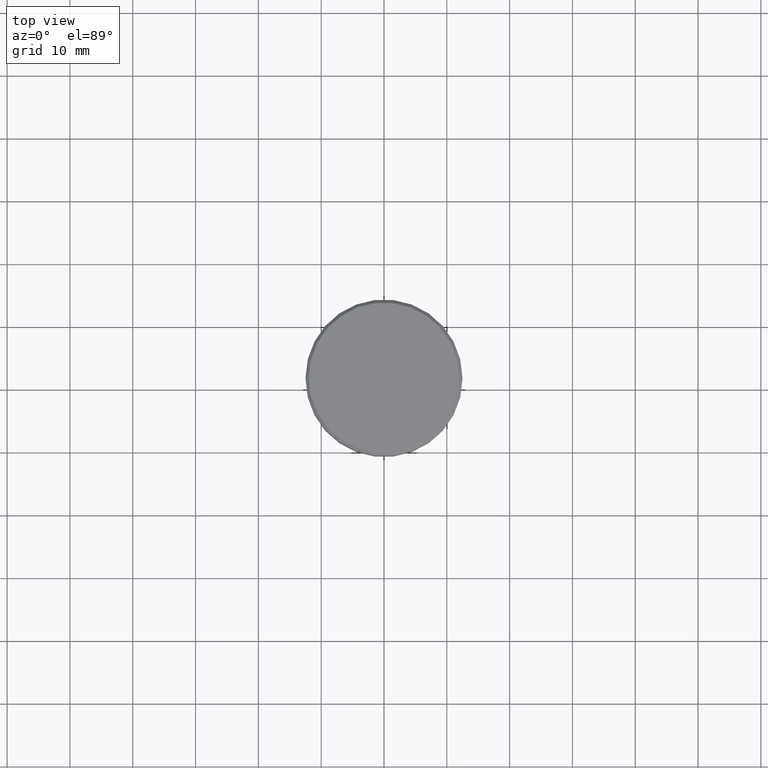
[diagram: clean part render]
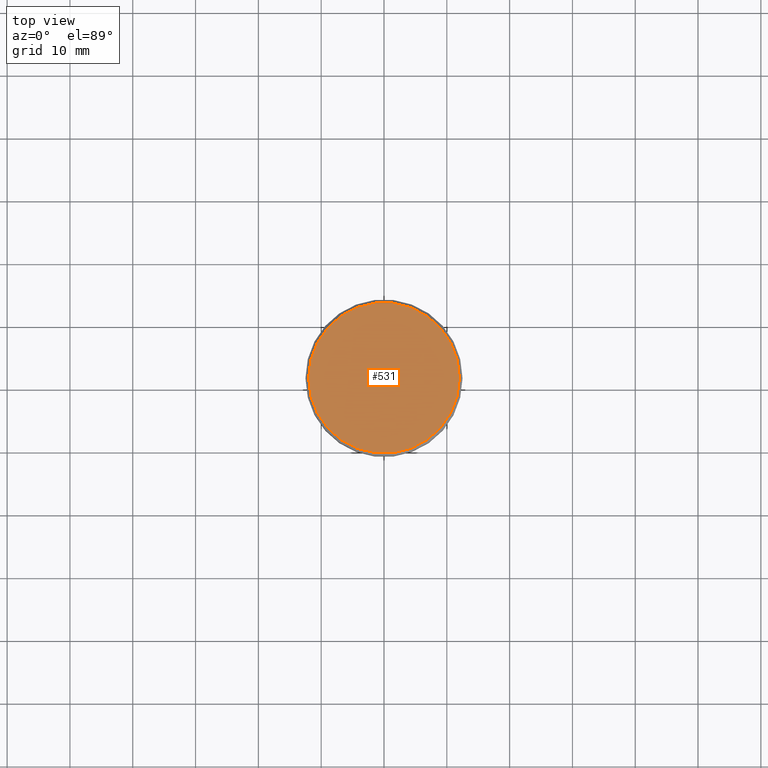
[diagram: same view with one face highlighted and labeled with its STEP entity id]
A machine part, top view. The second image highlights one B-rep face of the part: STEP entity #531.
In plain terms, the highlighted planar face has unit normal (0, -0, 1).
Its self-contained STEP definition (entity closure, byte-faithful):
#155 = CARTESIAN_POINT ( 'NONE',  ( 0.000000000000000000, 0.000000000000000000, 0.000000000000000000 ) ) ;
#185 = VERTEX_POINT ( 'NONE', #233 ) ;
#233 = CARTESIAN_POINT ( 'NONE',  ( 11.99999999999999645, 1.500192328955507537E-15, 0.000000000000000000 ) ) ;
#250 = CIRCLE ( 'NONE', #847, 11.99999999999999645 ) ;
#390 = ORIENTED_EDGE ( 'NONE', *, *, #670, .T. ) ;
#405 = DIRECTION ( 'NONE',  ( 0.000000000000000000, -0.000000000000000000, 1.000000000000000000 ) ) ;
#417 = DIRECTION ( 'NONE',  ( 1.000000000000000000, 0.000000000000000000, 0.000000000000000000 ) ) ;
#483 = DIRECTION ( 'NONE',  ( -0.000000000000000000, -0.000000000000000000, 1.000000000000000000 ) ) ;
#509 = CIRCLE ( 'NONE', #705, 11.99999999999999645 ) ;
#531 = ADVANCED_FACE ( 'NONE', ( #1043 ), #768, .T. ) ;
#607 = CARTESIAN_POINT ( 'NONE',  ( -11.99999999999999645, 0.000000000000000000, 0.000000000000000000 ) ) ;
#645 = AXIS2_PLACEMENT_3D ( 'NONE', #1060, #405, #417 ) ;
#655 = VERTEX_POINT ( 'NONE', #607 ) ;
#670 = EDGE_CURVE ( 'NONE', #655, #185, #250, .T. ) ;
#705 = AXIS2_PLACEMENT_3D ( 'NONE', #155, #483, #1161 ) ;
#768 = PLANE ( 'NONE',  #645 ) ;
#819 = EDGE_CURVE ( 'NONE', #185, #655, #509, .T. ) ;
#847 = AXIS2_PLACEMENT_3D ( 'NONE', #1173, #1003, #908 ) ;
#908 = DIRECTION ( 'NONE',  ( 1.000000000000000000, 0.000000000000000000, 0.000000000000000000 ) ) ;
#970 = ORIENTED_EDGE ( 'NONE', *, *, #819, .T. ) ;
#1003 = DIRECTION ( 'NONE',  ( -0.000000000000000000, -0.000000000000000000, 1.000000000000000000 ) ) ;
#1023 = EDGE_LOOP ( 'NONE', ( #390, #970 ) ) ;
#1043 = FACE_OUTER_BOUND ( 'NONE', #1023, .T. ) ;
#1060 = CARTESIAN_POINT ( 'NONE',  ( 0.000000000000000000, 0.000000000000000000, 0.000000000000000000 ) ) ;
#1161 = DIRECTION ( 'NONE',  ( 1.000000000000000000, 0.000000000000000000, 0.000000000000000000 ) ) ;
#1173 = CARTESIAN_POINT ( 'NONE',  ( 0.000000000000000000, 0.000000000000000000, 0.000000000000000000 ) ) ;